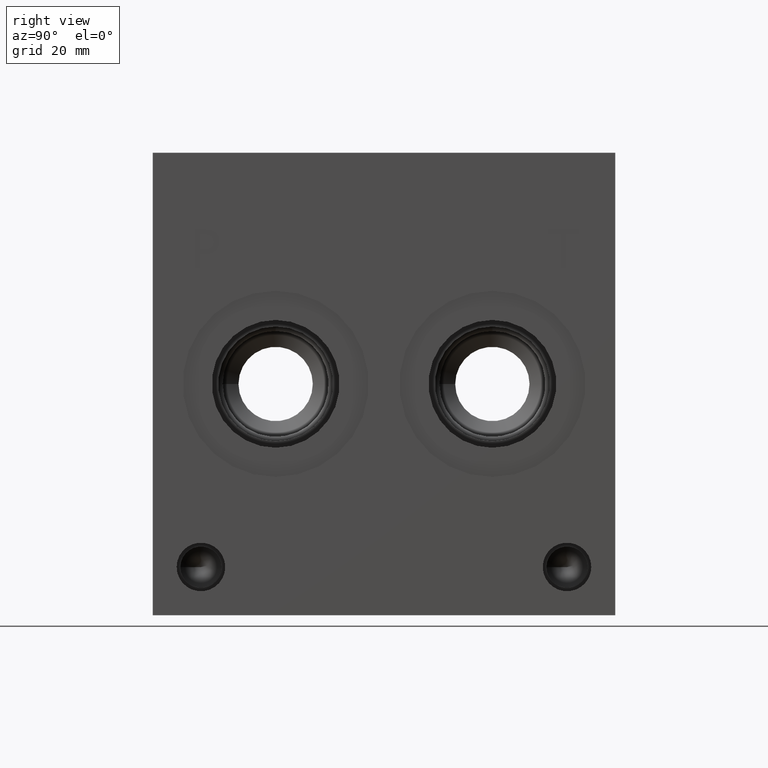
[diagram: clean part render]
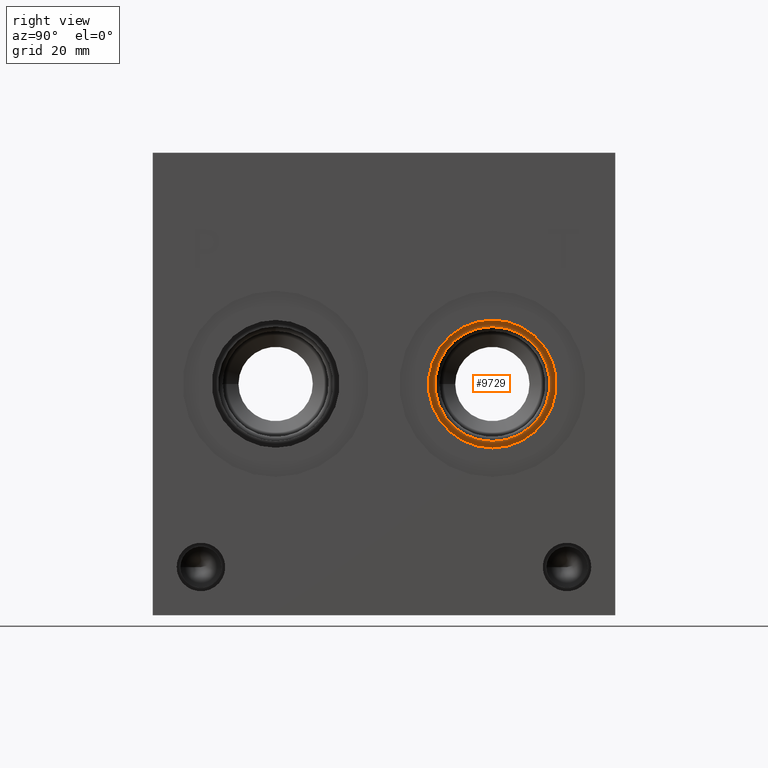
[diagram: same view with one face highlighted and labeled with its STEP entity id]
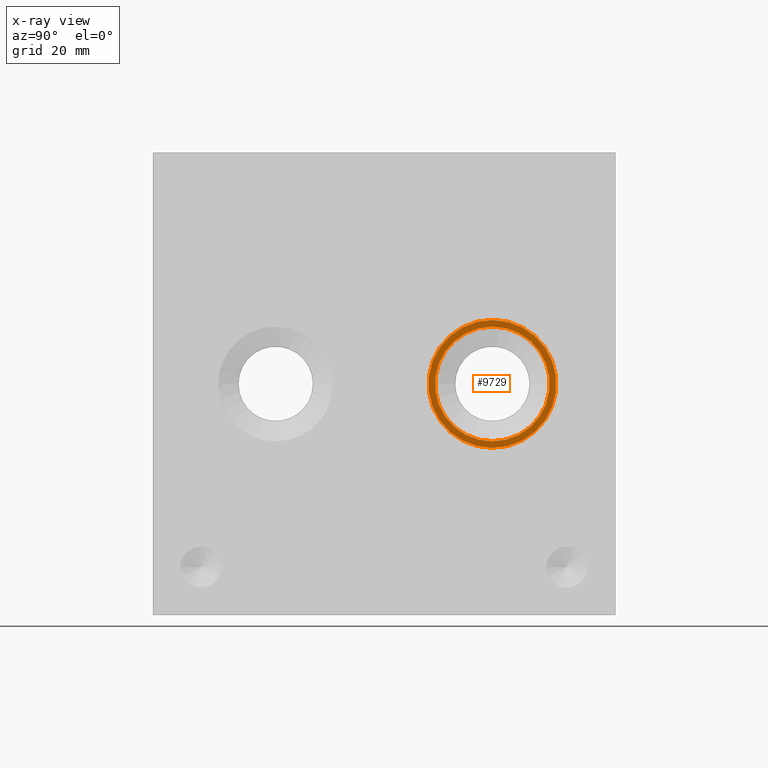
[diagram: x-ray of the same camera — body ghosted, the highlighted face saturated]
A machine part, right view. The second image highlights one B-rep face of the part: STEP entity #9729.
The next image is the same camera in x-ray: the body ghosted, the highlighted face saturated — about 0% of this face is hidden behind the body in this view.
In plain terms, the highlighted planar face has unit normal (-1, 0, 0).
Its self-contained STEP definition (entity closure, byte-faithful):
#128=CIRCLE('',#10163,10.5283);
#129=CIRCLE('',#10164,10.5283);
#130=CIRCLE('',#10166,9.4615);
#131=CIRCLE('',#10167,9.4615);
#309=FACE_BOUND('',#1677,.T.);
#1124=FACE_OUTER_BOUND('',#1676,.T.);
#1676=EDGE_LOOP('',(#8202,#8203));
#1677=EDGE_LOOP('',(#8204,#8205));
#4425=VERTEX_POINT('',#16367);
#4426=VERTEX_POINT('',#16369);
#4427=VERTEX_POINT('',#16373);
#4428=VERTEX_POINT('',#16374);
#5727=EDGE_CURVE('',#4425,#4426,#128,.T.);
#5728=EDGE_CURVE('',#4426,#4425,#129,.T.);
#5729=EDGE_CURVE('',#4427,#4428,#130,.T.);
#5730=EDGE_CURVE('',#4428,#4427,#131,.T.);
#8202=ORIENTED_EDGE('',*,*,#5728,.F.);
#8203=ORIENTED_EDGE('',*,*,#5727,.F.);
#8204=ORIENTED_EDGE('',*,*,#5729,.T.);
#8205=ORIENTED_EDGE('',*,*,#5730,.T.);
#8896=PLANE('',#10165);
#9729=ADVANCED_FACE('',(#1124,#309),#8896,.F.);
#10163=AXIS2_PLACEMENT_3D('',#16370,#11929,#11930);
#10164=AXIS2_PLACEMENT_3D('',#16371,#11931,#11932);
#10165=AXIS2_PLACEMENT_3D('',#16372,#11933,#11934);
#10166=AXIS2_PLACEMENT_3D('',#16375,#11935,#11936);
#10167=AXIS2_PLACEMENT_3D('',#16376,#11937,#11938);
#11929=DIRECTION('center_axis',(-1.,0.,0.));
#11930=DIRECTION('ref_axis',(0.,0.,1.));
#11931=DIRECTION('center_axis',(-1.,0.,0.));
#11932=DIRECTION('ref_axis',(0.,0.,1.));
#11933=DIRECTION('center_axis',(-1.,0.,0.));
#11934=DIRECTION('ref_axis',(0.,0.,1.));
#11935=DIRECTION('center_axis',(-1.,0.,0.));
#11936=DIRECTION('ref_axis',(0.,0.,1.));
#11937=DIRECTION('center_axis',(-1.,0.,0.));
#11938=DIRECTION('ref_axis',(0.,0.,1.));
#16367=CARTESIAN_POINT('',(36.6014,55.9562,48.6283));
#16369=CARTESIAN_POINT('',(36.6014,55.9562,27.5717));
#16370=CARTESIAN_POINT('Origin',(36.6014,55.9562,38.1));
#16371=CARTESIAN_POINT('Origin',(36.6014,55.9562,38.1));
#16372=CARTESIAN_POINT('Origin',(36.6014,55.9562,28.6385));
#16373=CARTESIAN_POINT('',(36.6014,55.9562,28.6385));
#16374=CARTESIAN_POINT('',(36.6014,55.9562,47.5615));
#16375=CARTESIAN_POINT('Origin',(36.6014,55.9562,38.1));
#16376=CARTESIAN_POINT('Origin',(36.6014,55.9562,38.1));